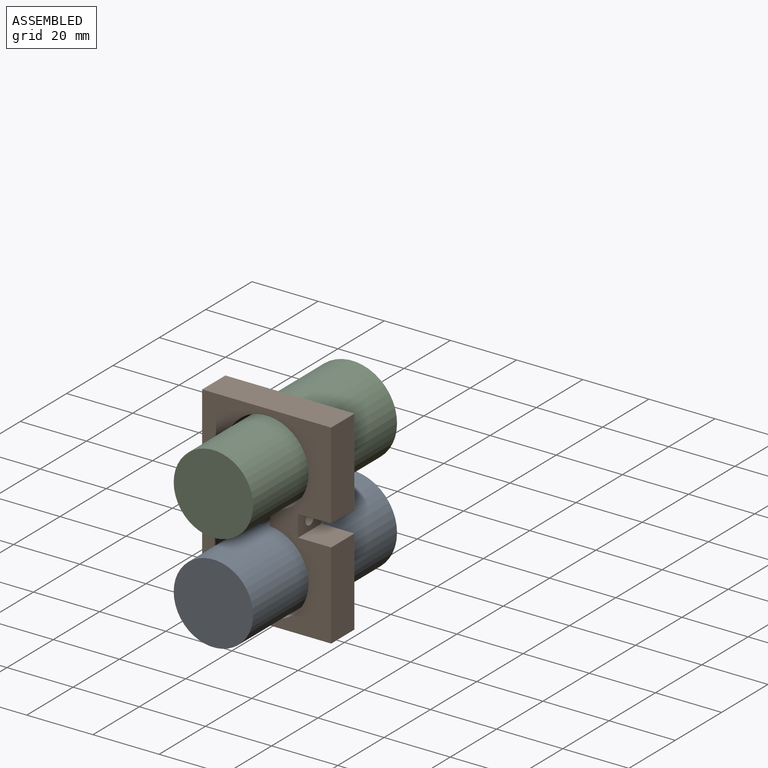
[diagram: assembled view]
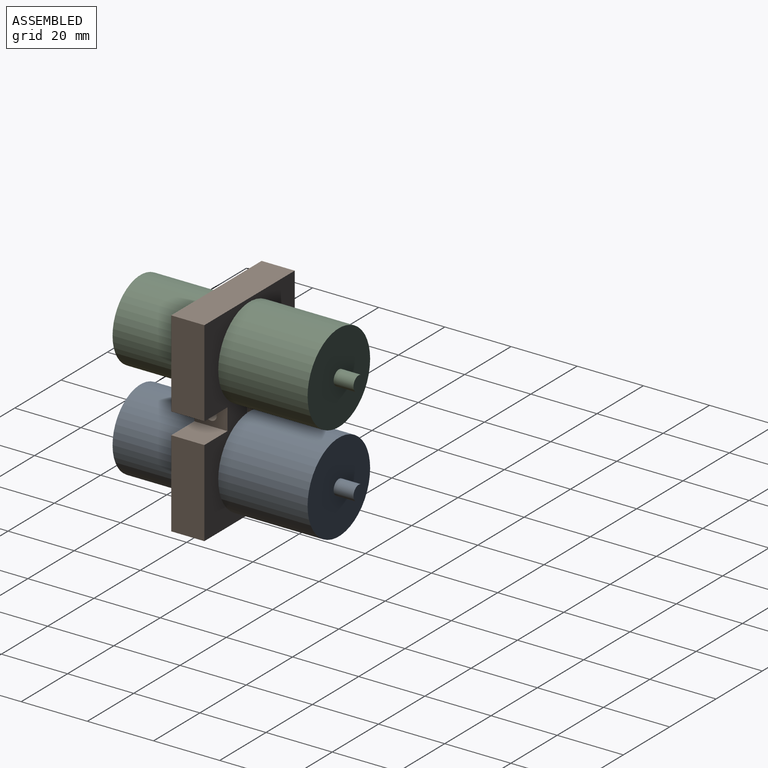
[diagram: assembled view, second angle]
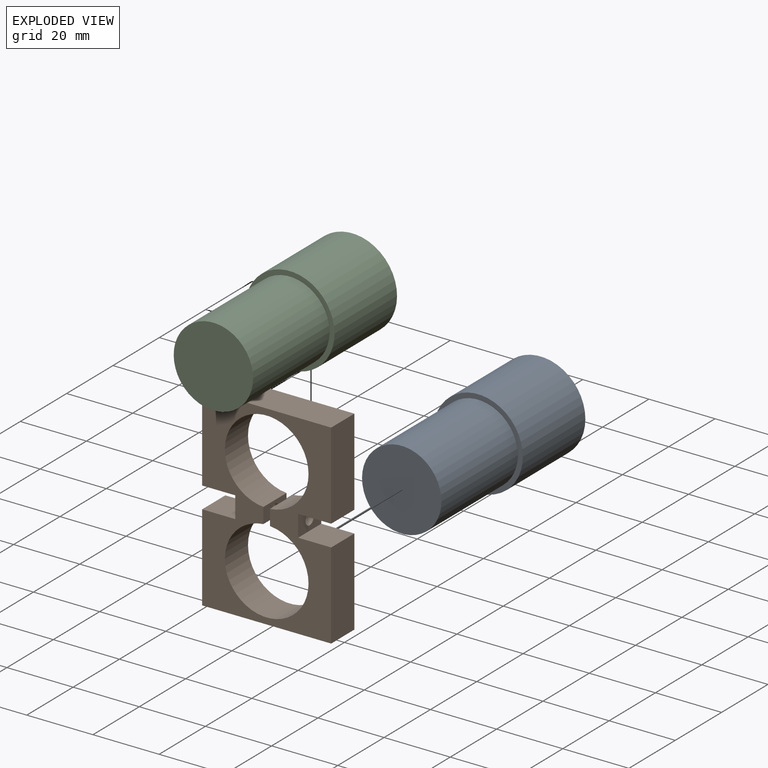
[diagram: exploded view]
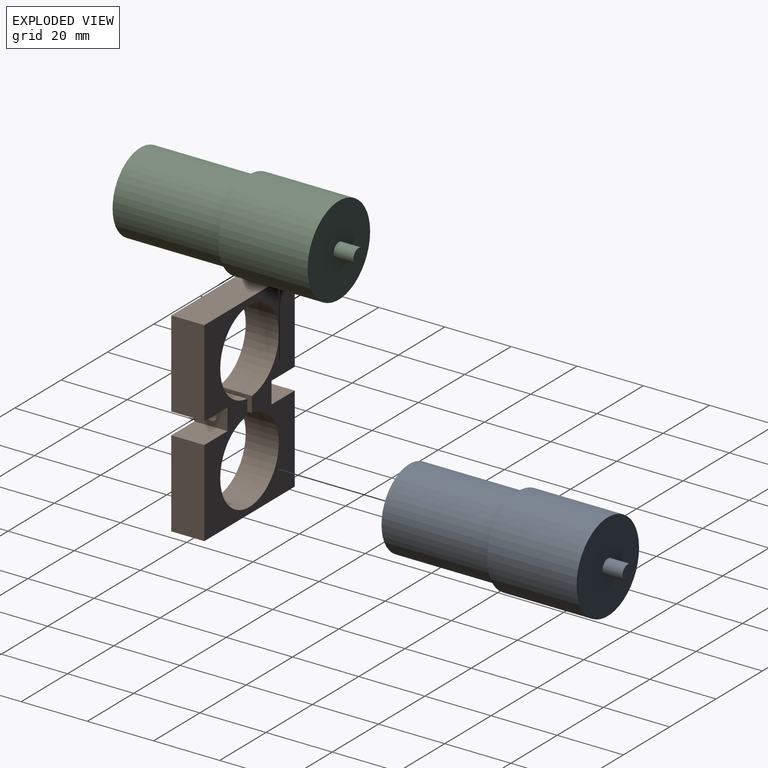
[diagram: exploded view, second angle]
ASSEMBLY  parts=3 mates=4
PART A: 7 faces, bbox 27x27x66 mm
  f0: cylinder r=13.5mm len=27mm, axis (0,0,-1), area 2290.2mm2, adj f1,f2
  f1: plane 27x27mm, normal (0,0,1), area 120.2mm2, adj f0,f3
  f2: plane 27x27mm, normal (0,0,-1), area 556.7mm2, adj f0,f5
  f3: cylinder r=12mm len=33mm, axis (0,0,-1), area 2488.1mm2, adj f1,f4
  f4: plane 24x24mm, normal (0,0,1), area 452.4mm2, adj f3
  f5: cylinder r=2.25mm len=6mm, axis (0,0,1), area 84.8mm2, adj f2,f6
  f6: plane 4.5x4.5mm, normal (0,0,-1), area 15.9mm2, adj f5
PART B: 24 faces, bbox 39x10x59 mm
  f0: plane 10x10mm, normal (0,0,-1), area 100mm2, adj f1,f15,f16,f17
  f1: plane 26.25x10mm, normal (1,0,0), area 262.5mm2, adj f0,f2,f16,f17
  f2: plane 39x10mm, normal (0,0,1), area 390mm2, adj f1,f3,f16,f17
  f3: plane 26.25x10mm, normal (-1,0,0), area 262.5mm2, adj f2,f4,f16,f17
  f4: plane 10x10mm, normal (0,0,-1), area 100mm2, adj f3,f5,f16,f17
  f5: plane 10x6.5mm, normal (-1,0,0), area 59.3mm2, adj f4,f6,f16,f17,f18
  f6: plane 10x10mm, normal (0,0,1), area 100mm2, adj f5,f7,f16,f17
  f7: plane 26.25x10mm, normal (-1,0,0), area 262.5mm2, adj f6,f8,f16,f17
  f8: plane 39x10mm, normal (0,0,-1), area 380.2mm2, adj f7,f9,f16,f17,f20,f22
  f9: plane 26.25x10mm, normal (1,0,0), area 262.5mm2, adj f8,f10,f16,f17
  f10: plane 10x10mm, normal (0,0,1), area 100mm2, adj f9,f15,f16,f17
  f11: plane 10x4.68mm, normal (1,0,0), area 41.1mm2, adj f12,f14,f16,f17,f18
  f12: cylinder r=12.65mm len=25.3mm, axis (0,1,0), area 774.8mm2, adj f11,f13,f16,f17
  f13: plane 10x4.68mm, normal (-1,0,0), area 37.2mm2, adj f12,f14,f16,f17,f19
  f14: cylinder r=12.65mm len=25.3mm, axis (0,1,0), area 774.8mm2, adj f11,f13,f16,f17
  f15: plane 10x6.5mm, normal (1,0,0), area 55.4mm2, adj f0,f10,f16,f17,f19
  f16: plane 59x39mm, normal (0,-1,0), area 1156.3mm2, adj f0,f1,f2,f3,f4,f5,f6,f7
  f17: plane 59x39mm, normal (0,1,0), area 1156.3mm2, adj f0,f1,f2,f3,f4,f5,f6,f7
  f18: cylinder r=1.35mm len=8.5mm, axis (1,0,0), area 72.1mm2, adj f5,f11
  f19: cylinder r=1.75mm len=8.5mm, axis (1,0,0), area 93.5mm2, adj f13,f15
  f20: cylinder r=1.25mm len=15mm, axis (0,0,-1), area 117.8mm2, adj f8,f21
  f21: plane 2.5x2.5mm, normal (0,0,-1), area 4.9mm2, adj f20
  f22: cylinder r=1.25mm len=15mm, axis (0,0,-1), area 117.8mm2, adj f8,f23
  f23: plane 2.5x2.5mm, normal (0,0,-1), area 4.9mm2, adj f22
PART C: same geometry as A
PLACE A rot(axis=(1,0,0),90deg) t=(0,32,14.55)mm
PLACE B t=(0,5,29.5)mm
PLACE C rot(axis=(1,0,0),90deg) t=(0,32,44.45)mm
MATE planar A.f0 <-> B.f17  axis (0,-1,0) through (0,5,14.55)mm
MATE cylindrical A.f3 <-> B.f14  axis (0,1,0) through (0,-11.5,14.55)mm
MATE cylindrical C.f3 <-> B.f12  axis (0,1,0) through (0,-11.5,44.45)mm
MATE planar C.f0 <-> B.f17  axis (0,-1,0) through (0,5,44.45)mm
